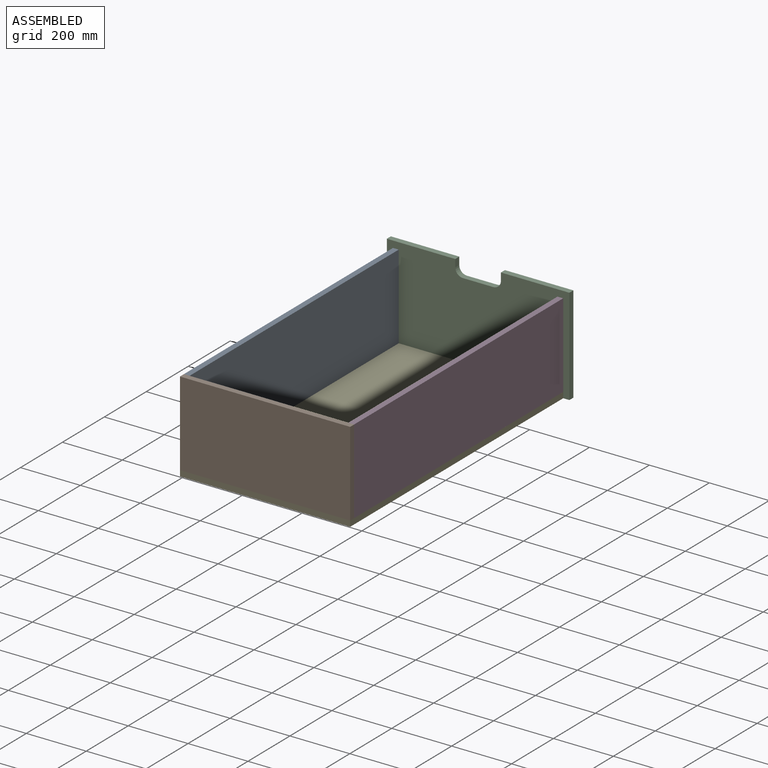
[diagram: assembled view]
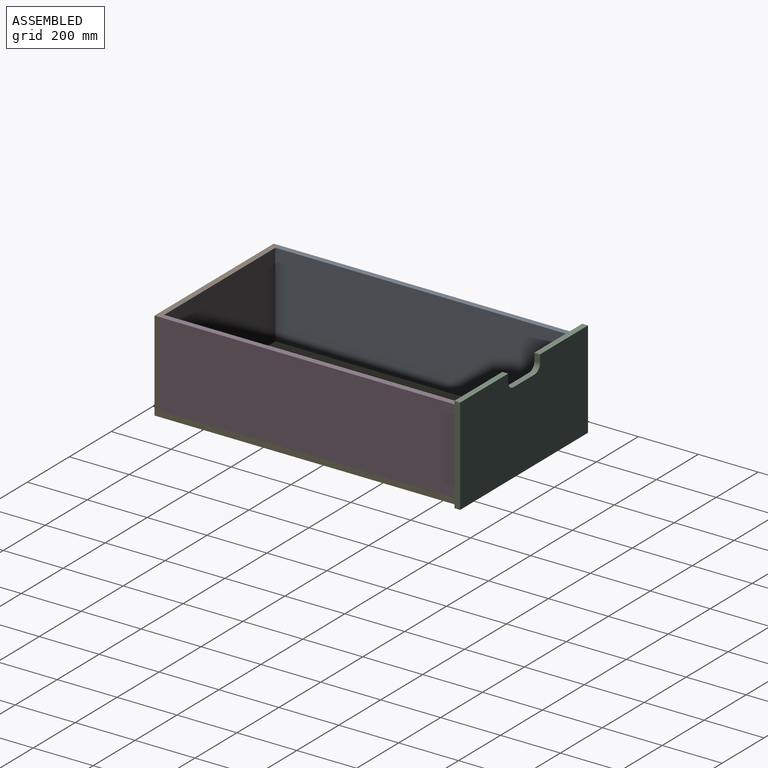
[diagram: assembled view, second angle]
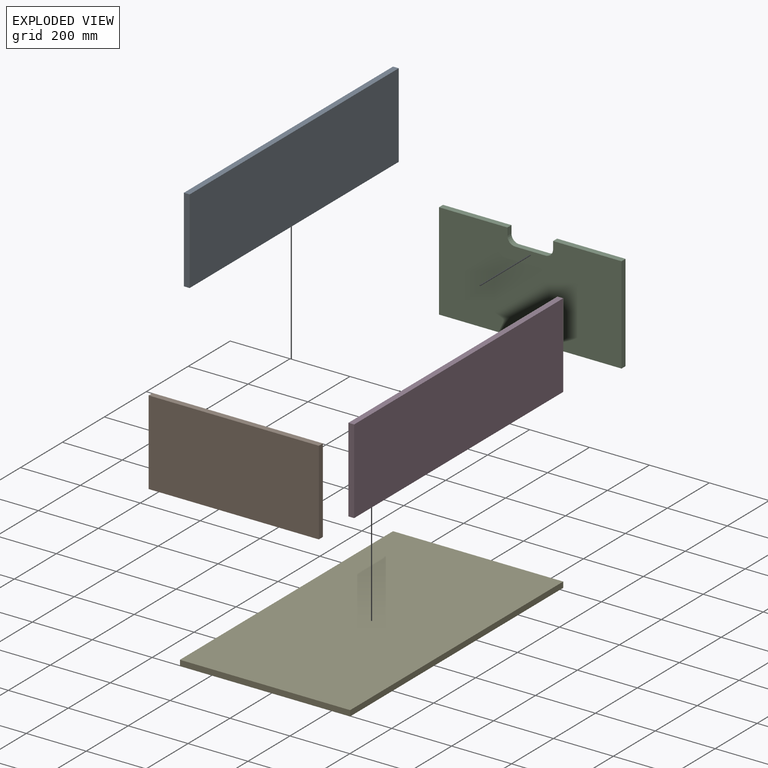
[diagram: exploded view]
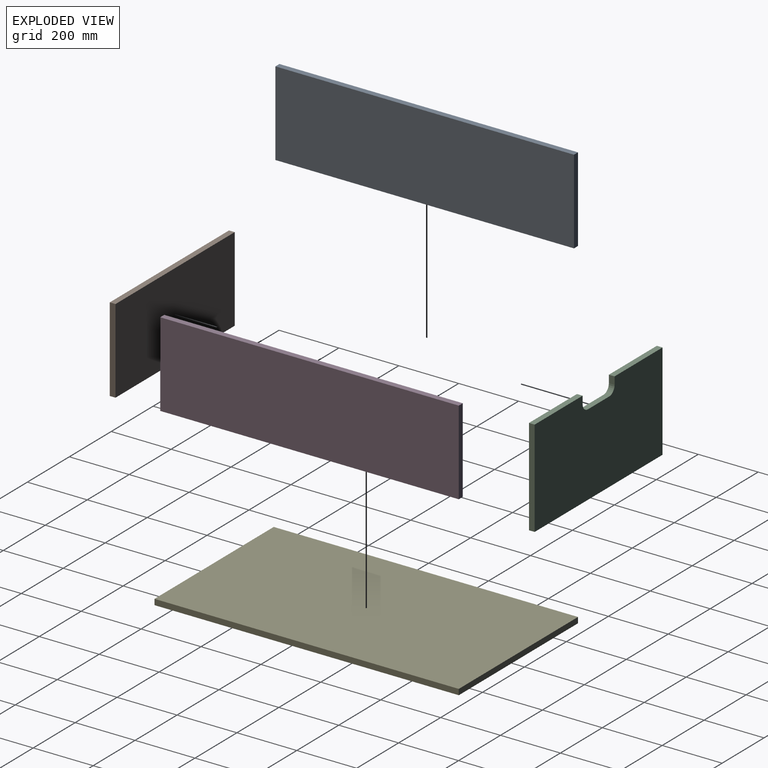
[diagram: exploded view, second angle]
ASSEMBLY  parts=5 mates=4
PART A: 6 faces, bbox 19.1x997x282.6 mm
  f0: plane 282.58x19.05mm, normal (0,-1,0), area 5383.1mm2, adj f1,f3,f4,f5
  f1: plane 996.95x19.05mm, normal (0,0,-1), area 18991.9mm2, adj f0,f2,f4,f5
  f2: plane 282.58x19.05mm, normal (0,1,0), area 5383.1mm2, adj f1,f3,f4,f5
  f3: plane 996.95x19.05mm, normal (0,0,1), area 18991.9mm2, adj f0,f2,f4,f5
  f4: plane 996.95x282.58mm, normal (1,0,0), area 281713.1mm2, adj f0,f1,f2,f3
  f5: plane 996.95x282.58mm, normal (-1,0,0), area 281713.1mm2, adj f0,f1,f2,f3
PART B: 6 faces, bbox 568.3x19.1x282.6 mm
  f0: plane 282.58x19.05mm, normal (-1,0,0), area 5383.1mm2, adj f1,f3,f4,f5
  f1: plane 568.33x19.05mm, normal (0,0,-1), area 10826.6mm2, adj f0,f2,f4,f5
  f2: plane 282.58x19.05mm, normal (1,0,0), area 5383.1mm2, adj f1,f3,f4,f5
  f3: plane 568.33x19.05mm, normal (0,0,1), area 10826.6mm2, adj f0,f2,f4,f5
  f4: plane 568.33x282.58mm, normal (0,-1,0), area 160594.4mm2, adj f0,f1,f2,f3
  f5: plane 568.33x282.58mm, normal (0,1,0), area 160594.4mm2, adj f0,f1,f2,f3
PART C: 12 faces, bbox 609.6x19.1x323.9 mm
  f0: plane 228.6x19.05mm, normal (0,0,1), area 4354.8mm2, adj f1,f9,f10,f11
  f1: plane 25.4x19.05mm, normal (-1,0,0), area 483.9mm2, adj f0,f2,f10,f11
  f2: cylinder r=25.4mm len=25.4mm, axis (0,1,0), area 760.1mm2, adj f1,f3,f10,f11
  f3: plane 101.6x19.05mm, normal (0,0,1), area 1935.5mm2, adj f2,f4,f10,f11
  f4: cylinder r=25.4mm len=25.4mm, axis (0,1,0), area 760.1mm2, adj f3,f5,f10,f11
  f5: plane 25.4x19.05mm, normal (1,0,0), area 483.9mm2, adj f4,f6,f10,f11
  f6: plane 228.6x19.05mm, normal (0,0,1), area 4354.8mm2, adj f5,f7,f10,f11
  f7: plane 323.85x19.05mm, normal (-1,0,0), area 6169.3mm2, adj f6,f8,f10,f11
  f8: plane 609.6x19.05mm, normal (0,0,-1), area 11612.9mm2, adj f7,f9,f10,f11
  f9: plane 323.85x19.05mm, normal (1,0,0), area 6169.3mm2, adj f0,f8,f10,f11
  f10: plane 609.6x323.85mm, normal (0,-1,0), area 189953.9mm2, adj f0,f1,f2,f3,f4,f5,f6,f7
  f11: plane 609.6x323.85mm, normal (0,1,0), area 189953.9mm2, adj f0,f1,f2,f3,f4,f5,f6,f7
PART D: same geometry as A
PART E: 6 faces, bbox 568.3x1016x19.1 mm
  f0: plane 1016x19.05mm, normal (-1,0,0), area 19354.8mm2, adj f1,f3,f4,f5
  f1: plane 568.33x19.05mm, normal (0,-1,0), area 10826.6mm2, adj f0,f2,f4,f5
  f2: plane 1016x19.05mm, normal (1,0,0), area 19354.8mm2, adj f1,f3,f4,f5
  f3: plane 568.33x19.05mm, normal (0,1,0), area 10826.6mm2, adj f0,f2,f4,f5
  f4: plane 1016x568.33mm, normal (0,0,1), area 577418.2mm2, adj f0,f1,f2,f3
  f5: plane 1016x568.33mm, normal (0,0,-1), area 577418.2mm2, adj f0,f1,f2,f3
PLACE A rot(axis=(0,1,0),180deg) t=(-263.52,-468.54,-1.59)mm
PLACE B t=(1.59,-1016,-1.59)mm
PLACE C t=(1.59,0,0)mm fixed
PLACE D t=(266.7,-468.54,-1.59)mm
PLACE E t=(18.91,165.29,-161.92)mm
MATE fastened A.f3 <-> E.f4  axis (0,0,-1) through (-282.57,-19.05,-142.87)mm
MATE fastened C.f10 <-> E.f3  axis (0,-1,0) through (1.59,-19.05,-161.92)mm
MATE fastened D.f1 <-> E.f4  axis (0,0,-1) through (285.75,-19.05,-142.87)mm
MATE fastened B.f5 <-> D.f0  axis (0,1,0) through (285.75,-1016,139.7)mm
